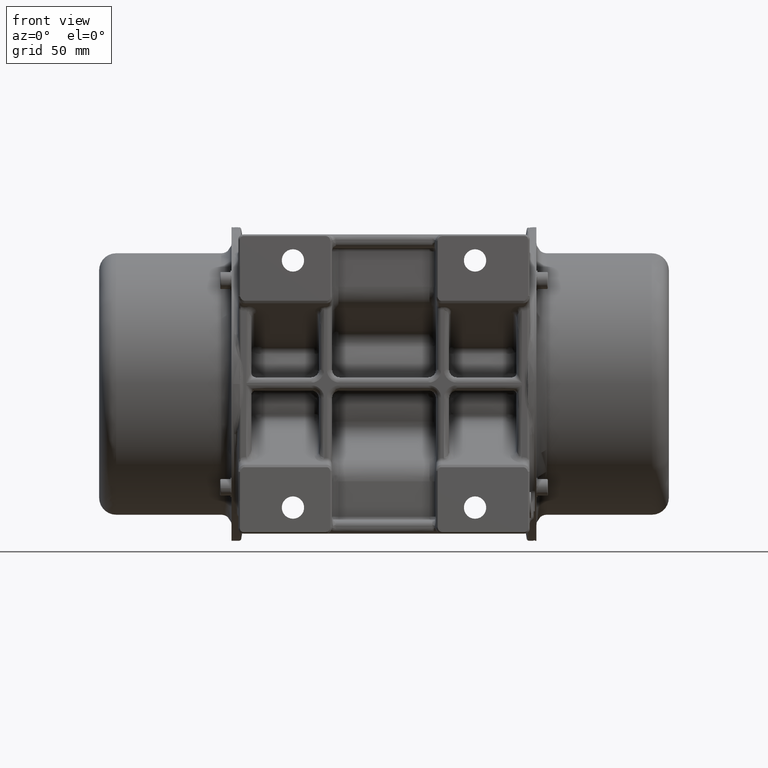
[diagram: clean part render]
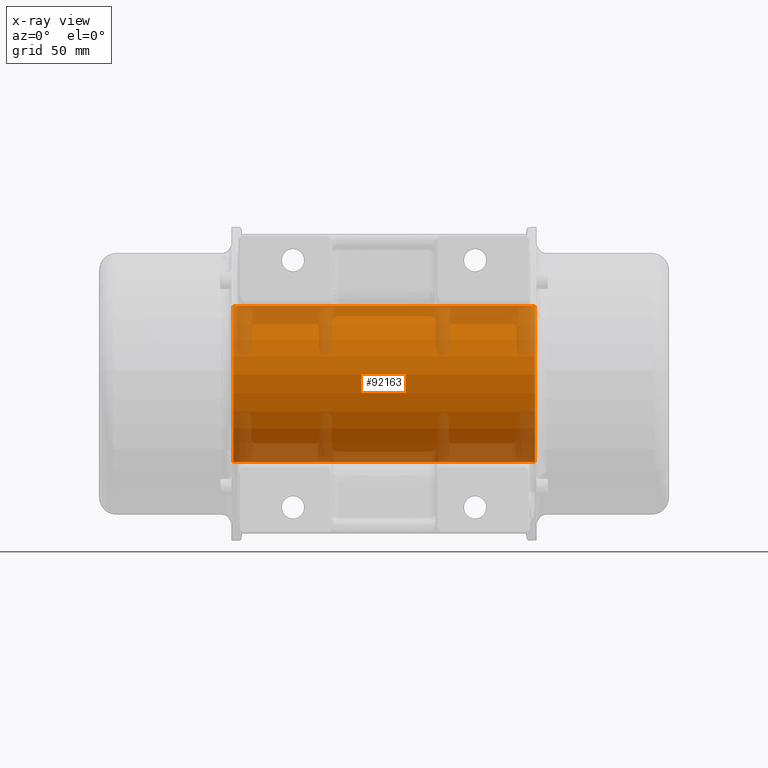
[diagram: x-ray — body ghosted, one internal face saturated and labeled with its STEP entity id]
A machine part, front view, then the same camera in x-ray: the body is ghosted and one INTERNAL B-rep face — a face not visible from any outside direction — is saturated and labeled: STEP entity #92163.
In plain terms, the highlighted cylindrical surface (partial cylindrical patch) has radius 60 mm, axis along (1, 0, 0).
Its self-contained STEP definition (entity closure, byte-faithful):
#4017 = DIRECTION ( 'NONE',  ( 0.0000000000000000000, 0.0000000000000000000, 1.000000000000000000 ) ) ;
#7749 = FACE_OUTER_BOUND ( 'NONE', #72219, .T. ) ;
#9472 = EDGE_CURVE ( 'NONE', #140842, #107308, #160391, .T. ) ;
#11950 = VECTOR ( 'NONE', #17464, 1000.000000000000000 ) ;
#13253 = ORIENTED_EDGE ( 'NONE', *, *, #17866, .T. ) ;
#17464 = DIRECTION ( 'NONE',  ( 1.000000000000000000, 0.0000000000000000000, 0.0000000000000000000 ) ) ;
#17866 = EDGE_CURVE ( 'NONE', #150165, #77500, #141819, .T. ) ;
#20286 = VECTOR ( 'NONE', #85744, 1000.000000000000000 ) ;
#29007 = DIRECTION ( 'NONE',  ( 1.000000000000000000, 0.0000000000000000000, 0.0000000000000000000 ) ) ;
#35194 = ORIENTED_EDGE ( 'NONE', *, *, #9472, .T. ) ;
#36367 = DIRECTION ( 'NONE',  ( 1.000000000000000000, 0.0000000000000000000, 0.0000000000000000000 ) ) ;
#50395 = CARTESIAN_POINT ( 'NONE',  ( 110.6420498956300100, 36.10843668353454900, -60.00000000000004300 ) ) ;
#58551 = ORIENTED_EDGE ( 'NONE', *, *, #65707, .F. ) ;
#62429 = CARTESIAN_POINT ( 'NONE',  ( -132.3621181015270200, 36.10843668353455600, 59.99999999999995700 ) ) ;
#65707 = EDGE_CURVE ( 'NONE', #150165, #107308, #178618, .T. ) ;
#69088 = AXIS2_PLACEMENT_3D ( 'NONE', #187792, #95920, #4017 ) ;
#70708 = CARTESIAN_POINT ( 'NONE',  ( -121.3579501043700000, 36.10843668353454900, -60.00000000000004300 ) ) ;
#72219 = EDGE_LOOP ( 'NONE', ( #13253, #80836, #35194, #58551 ) ) ;
#77500 = VERTEX_POINT ( 'NONE', #199125 ) ;
#80836 = ORIENTED_EDGE ( 'NONE', *, *, #94616, .T. ) ;
#85744 = DIRECTION ( 'NONE',  ( 1.000000000000000000, 0.0000000000000000000, 0.0000000000000000000 ) ) ;
#92163 = ADVANCED_FACE ( 'NONE', ( #7749 ), #161342, .F. ) ;
#94616 = EDGE_CURVE ( 'NONE', #77500, #140842, #170409, .T. ) ;
#95920 = DIRECTION ( 'NONE',  ( -1.000000000000000000, 0.0000000000000000000, 0.0000000000000000000 ) ) ;
#107308 = VERTEX_POINT ( 'NONE', #50395 ) ;
#120883 = CARTESIAN_POINT ( 'NONE',  ( 110.6420498956300100, 36.10843668353454900, -4.163336342344334500E-014 ) ) ;
#124685 = AXIS2_PLACEMENT_3D ( 'NONE', #143613, #36367, #173851 ) ;
#132621 = CARTESIAN_POINT ( 'NONE',  ( -132.3621181015270200, 36.10843668353454900, -60.00000000000004300 ) ) ;
#136269 = DIRECTION ( 'NONE',  ( 0.0000000000000000000, 0.0000000000000000000, -1.000000000000000000 ) ) ;
#139143 = CARTESIAN_POINT ( 'NONE',  ( 110.6420498956300100, 36.10843668353455600, 59.99999999999995700 ) ) ;
#140842 = VERTEX_POINT ( 'NONE', #139143 ) ;
#141819 = CIRCLE ( 'NONE', #69088, 60.00000000000000000 ) ;
#143613 = CARTESIAN_POINT ( 'NONE',  ( -132.3621181015270200, 36.10843668353454900, -4.163336342344334500E-014 ) ) ;
#150165 = VERTEX_POINT ( 'NONE', #70708 ) ;
#160391 = CIRCLE ( 'NONE', #189247, 60.00000000000000000 ) ;
#161342 = CYLINDRICAL_SURFACE ( 'NONE', #124685, 60.00000000000000000 ) ;
#170409 = LINE ( 'NONE', #62429, #11950 ) ;
#173851 = DIRECTION ( 'NONE',  ( 0.0000000000000000000, 0.0000000000000000000, -1.000000000000000000 ) ) ;
#178618 = LINE ( 'NONE', #132621, #20286 ) ;
#187792 = CARTESIAN_POINT ( 'NONE',  ( -121.3579501043700000, 36.10843668353454900, -4.163336342344334500E-014 ) ) ;
#189247 = AXIS2_PLACEMENT_3D ( 'NONE', #120883, #29007, #136269 ) ;
#199125 = CARTESIAN_POINT ( 'NONE',  ( -121.3579501043700000, 36.10843668353455600, 59.99999999999995700 ) ) ;